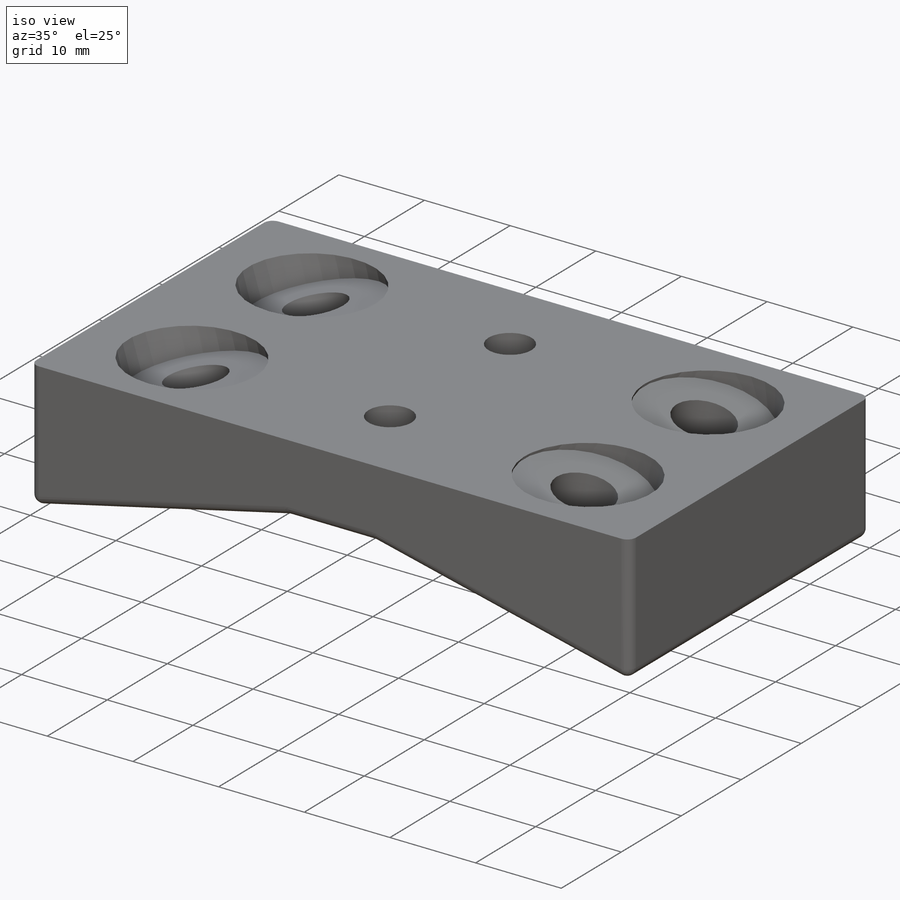
[diagram: iso view]
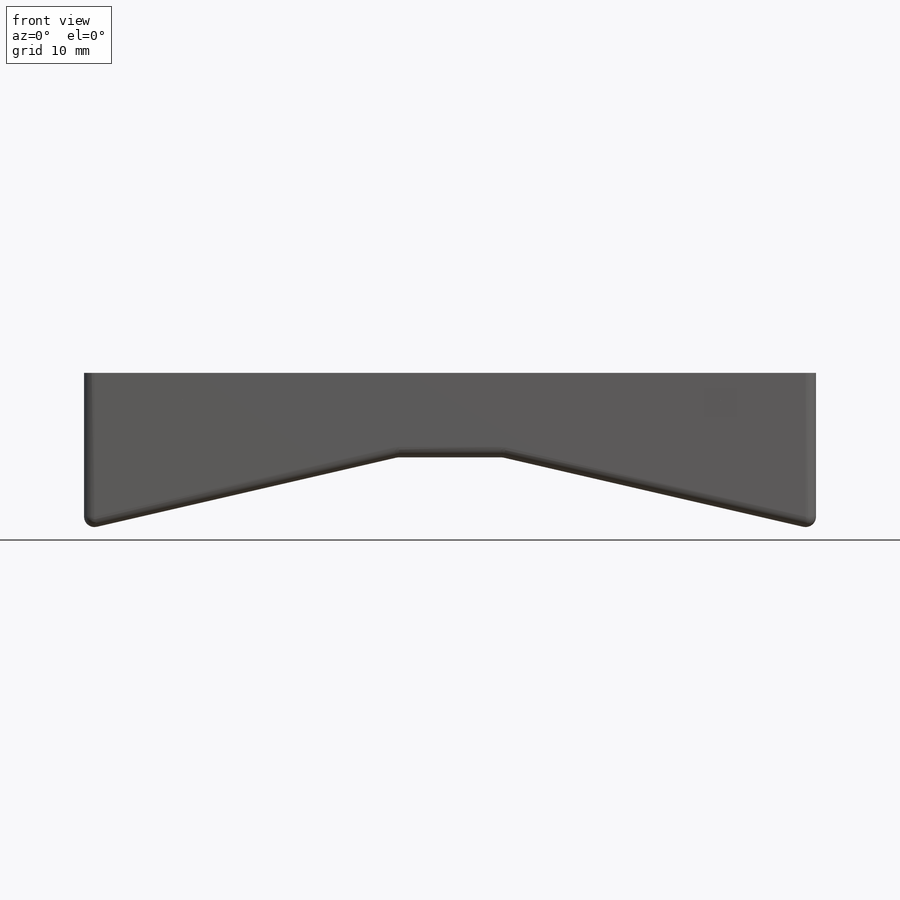
[diagram: front view]
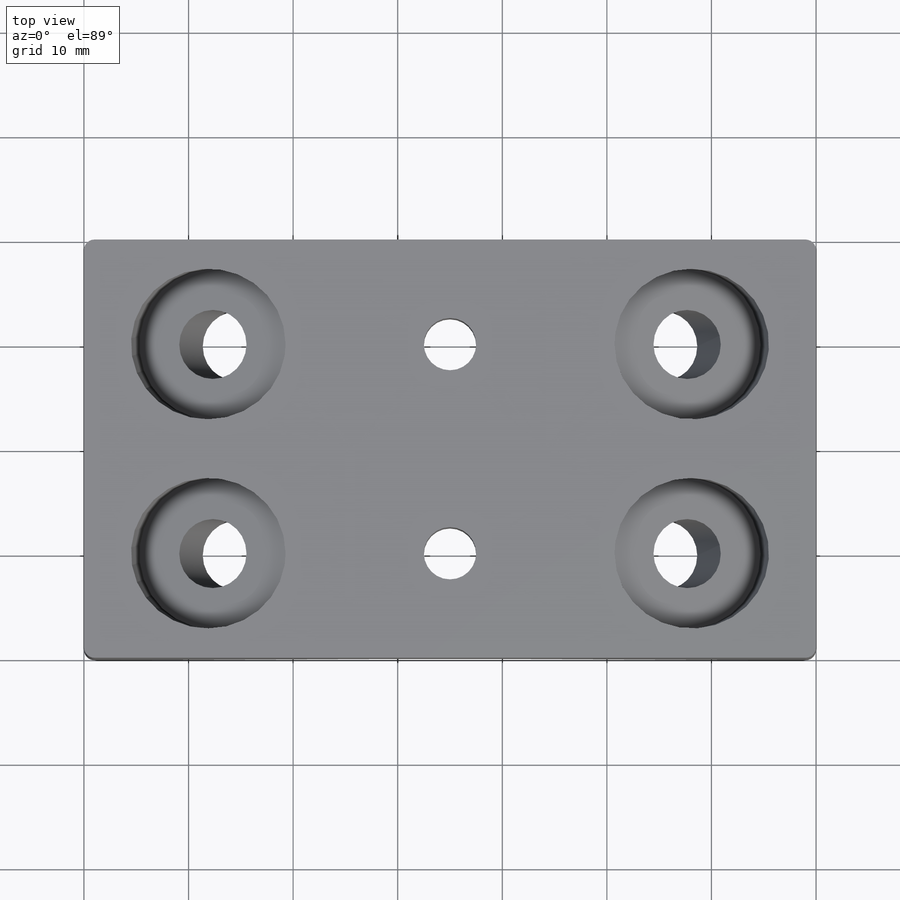
[diagram: top view]
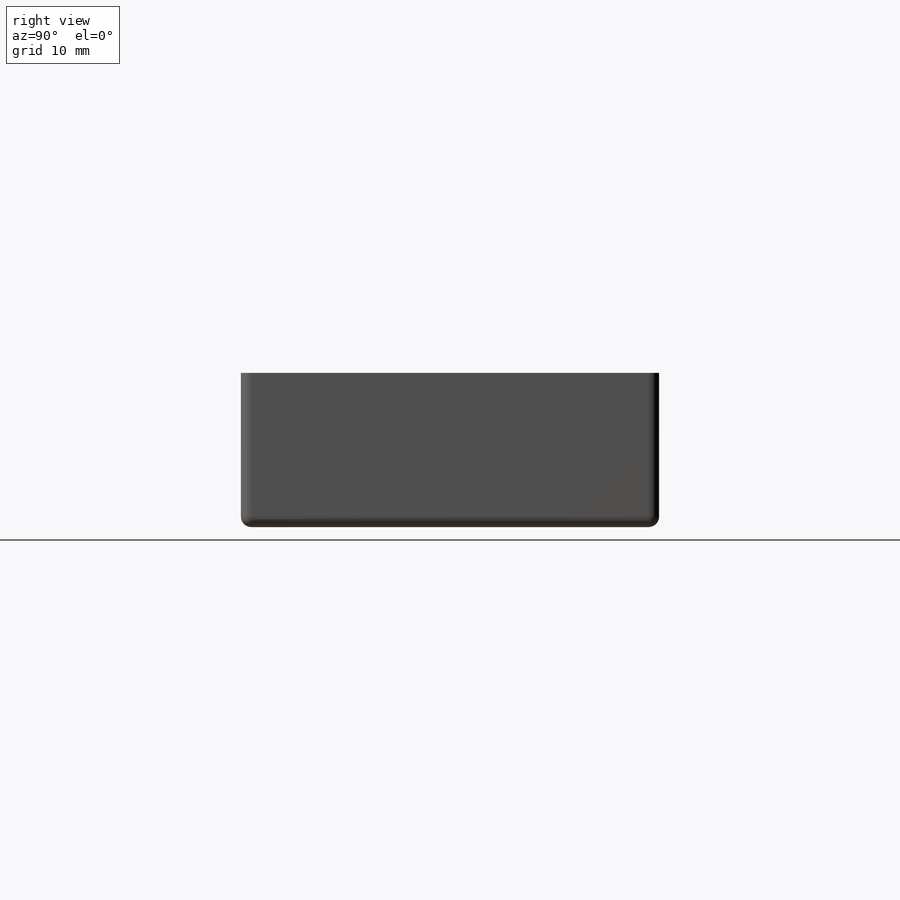
[diagram: right view]
SOLIDWORKS PART (.sldprt)
format: sldprt  version: not decoded by parser v0  size: 318,464 bytes
history: native  units: mm
features: sketch x9, hole x3, cut_extrude x2, material x1, extrude x1, plane x1, fillet x1 (+11 scaffold rows collapsed)
feature tree (29):
  scaffold x11  (default folders/planes/origin — collapsed)
  material  "Material <not specified>"
  sketch  "Sketch1"  dims[c1.D1=15.0mm c1.D2=70.0mm c1.D3=30.0mm c2.D3=~23.860065deg c3.D3=60.0mm c4.D3=13.0deg c4.D4=10.0mm]
  extrude  "Boss-Extrude1"  Depth=40mm
  hole  "Ø5.0 (5) Diameter Hole1"  Diameter=5mm Depth=19mm
  sketch  "Sketch3"  dims[D1=20.0mm D2=10.0mm D3=5.0mm]
  sketch  "Sketch2"  dims[hole-wizard template sketch: 47 standard entries collapsed; hole parameters kept: c15.Hole Depth=19.0mm c15.D3=~14.816244mm c15.Drill Angle=118.0deg]
  plane  "Plane1"
  fillet  "Fillet1"  Radius=1mm
  hole  "M6 Clearance Hole3"  Diameter=6.6mm Depth=14.615551mm
  sketch  "Sketch13"
  sketch  "Sketch12"  dims[hole-wizard template sketch: 60 standard entries collapsed; hole parameters kept: c18.Thru Hole Depth=~14.615551mm]
  hole  "M6 Clearance Hole4"  Diameter=6.6mm Depth=19mm
  sketch  "Sketch15"
  sketch  "Sketch14"  dims[hole-wizard template sketch: 46 standard entries collapsed; hole parameters kept: c15.Hole Dia.=6.6mm c15.Hole Depth=19.0mm c15.D3=~14.816244mm c15.Drill Angle=118.0deg]
  sketch  "Sketch16"  dims[D1=14.4mm]
  cut_extrude  "Cut-Extrude2"  Depth=10mm
  sketch  "Sketch17"  dims[D1=14.4mm]
  cut_extrude  "Cut-Extrude3"  Depth=10mm
decode coverage: 14 of 16 modeling features carry decoded parameters
note: ~ marks probable driven/reference dimensions
note: suppression state not decoded; provenance and decode notes live in map.json
